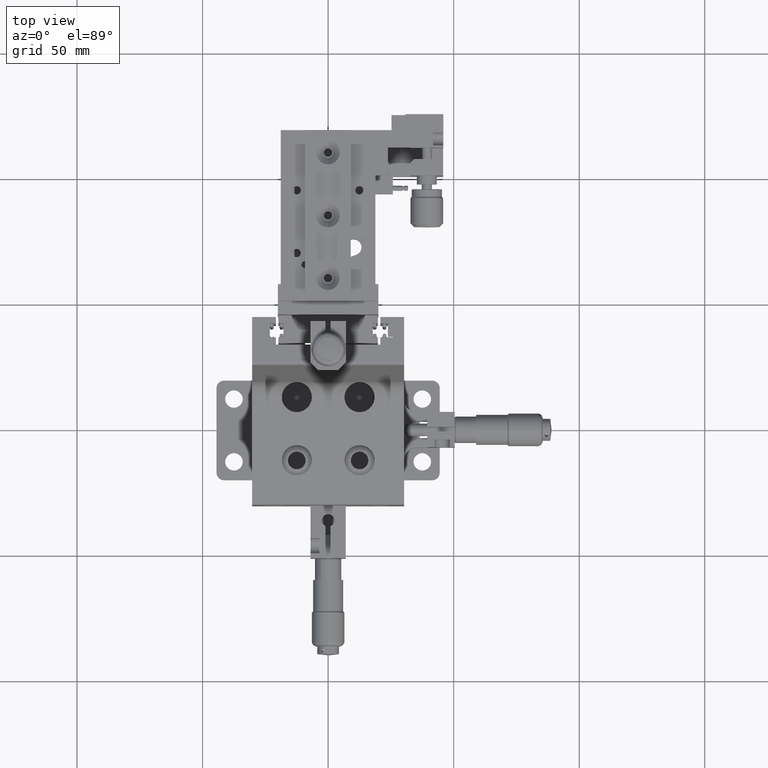
[diagram: clean part render]
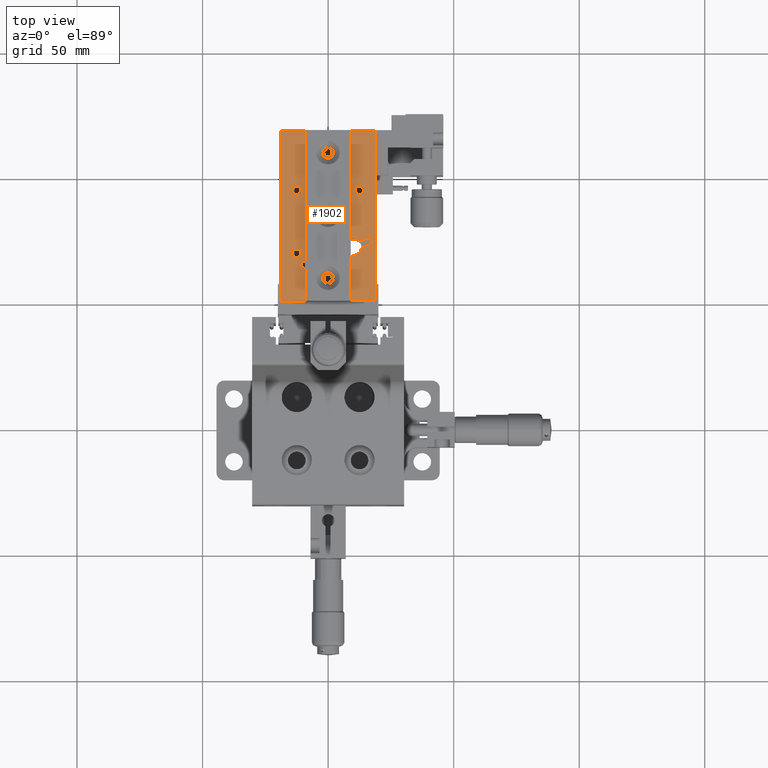
[diagram: same view with one face highlighted and labeled with its STEP entity id]
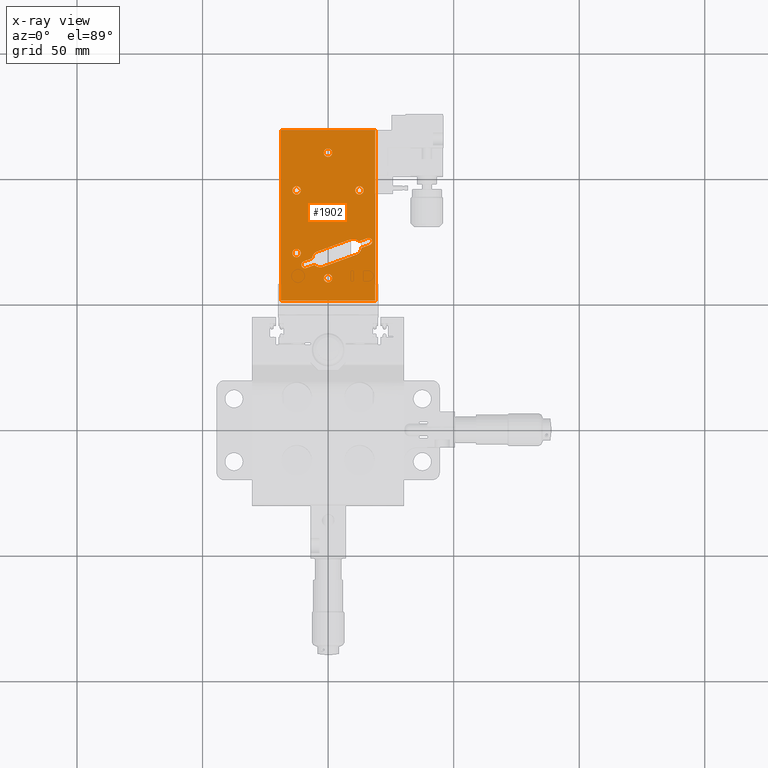
[diagram: x-ray of the same camera — body ghosted, the highlighted face saturated]
A machine part, top view. The second image highlights one B-rep face of the part: STEP entity #1902.
The next image is the same camera in x-ray: the body ghosted, the highlighted face saturated — about 0% of this face is hidden behind the body in this view.
In plain terms, the highlighted planar face has unit normal (0.0083, 0, -1).
Its self-contained STEP definition (entity closure, byte-faithful):
#1431 = VERTEX_POINT ( 'NONE', #15313 ) ;
#1466 = EDGE_CURVE ( 'NONE', #1431, #1480, #15370, .T. ) ;
#1480 = VERTEX_POINT ( 'NONE', #15418 ) ;
#1498 = VERTEX_POINT ( 'NONE', #15484 ) ;
#1499 = VERTEX_POINT ( 'NONE', #15473 ) ;
#1500 = VERTEX_POINT ( 'NONE', #15469 ) ;
#1501 = EDGE_CURVE ( 'NONE', #1510, #1500, #15478, .T. ) ;
#1505 = VERTEX_POINT ( 'NONE', #15464 ) ;
#1510 = VERTEX_POINT ( 'NONE', #15509 ) ;
#1512 = EDGE_CURVE ( 'NONE', #1520, #1529, #15513, .T. ) ;
#1514 = EDGE_CURVE ( 'NONE', #1498, #1499, #15510, .T. ) ;
#1520 = VERTEX_POINT ( 'NONE', #15549 ) ;
#1529 = VERTEX_POINT ( 'NONE', #15536 ) ;
#1537 = EDGE_CURVE ( 'NONE', #1559, #1616, #15535, .T. ) ;
#1542 = VERTEX_POINT ( 'NONE', #15543 ) ;
#1546 = VERTEX_POINT ( 'NONE', #15540 ) ;
#1548 = VERTEX_POINT ( 'NONE', #15522 ) ;
#1553 = EDGE_CURVE ( 'NONE', #1546, #1548, #15545, .T. ) ;
#1559 = VERTEX_POINT ( 'NONE', #15561 ) ;
#1566 = EDGE_CURVE ( 'NONE', #1505, #1568, #15556, .T. ) ;
#1568 = VERTEX_POINT ( 'NONE', #15602 ) ;
#1583 = EDGE_CURVE ( 'NONE', #1601, #1595, #15635, .T. ) ;
#1593 = EDGE_CURVE ( 'NONE', #1602, #1601, #15626, .T. ) ;
#1595 = VERTEX_POINT ( 'NONE', #15665 ) ;
#1601 = VERTEX_POINT ( 'NONE', #15654 ) ;
#1602 = VERTEX_POINT ( 'NONE', #15662 ) ;
#1607 = EDGE_CURVE ( 'NONE', #1542, #1611, #15704, .T. ) ;
#1611 = VERTEX_POINT ( 'NONE', #15647 ) ;
#1616 = VERTEX_POINT ( 'NONE', #15691 ) ;
#1626 = VERTEX_POINT ( 'NONE', #15705 ) ;
#1628 = EDGE_CURVE ( 'NONE', #1699, #1626, #15729, .T. ) ;
#1639 = EDGE_CURVE ( 'NONE', #1568, #1505, #15725, .T. ) ;
#1648 = EDGE_CURVE ( 'NONE', #1611, #1542, #15766, .T. ) ;
#1649 = EDGE_CURVE ( 'NONE', #1616, #1559, #15742, .T. ) ;
#1654 = EDGE_CURVE ( 'NONE', #1548, #1546, #15743, .T. ) ;
#1664 = EDGE_CURVE ( 'NONE', #1692, #1699, #15779, .T. ) ;
#1670 = EDGE_CURVE ( 'NONE', #1671, #1692, #15827, .T. ) ;
#1671 = VERTEX_POINT ( 'NONE', #15782 ) ;
#1692 = VERTEX_POINT ( 'NONE', #15848 ) ;
#1697 = EDGE_CURVE ( 'NONE', #1499, #1498, #15843, .T. ) ;
#1699 = VERTEX_POINT ( 'NONE', #15838 ) ;
#1703 = EDGE_CURVE ( 'NONE', #1782, #1510, #14857, .T. ) ;
#1709 = EDGE_CURVE ( 'NONE', #1723, #1520, #15598, .T. ) ;
#1723 = VERTEX_POINT ( 'NONE', #15870 ) ;
#1725 = EDGE_CURVE ( 'NONE', #1626, #1671, #15868, .T. ) ;
#1732 = VERTEX_POINT ( 'NONE', #15920 ) ;
#1747 = VERTEX_POINT ( 'NONE', #15897 ) ;
#1748 = VERTEX_POINT ( 'NONE', #15954 ) ;
#1753 = EDGE_CURVE ( 'NONE', #1732, #1747, #15942, .T. ) ;
#1769 = EDGE_CURVE ( 'NONE', #1500, #1529, #15932, .T. ) ;
#1773 = EDGE_CURVE ( 'NONE', #1732, #1782, #15974, .T. ) ;
#1782 = VERTEX_POINT ( 'NONE', #15970 ) ;
#1812 = EDGE_CURVE ( 'NONE', #1480, #1431, #16050, .T. ) ;
#1820 = EDGE_CURVE ( 'NONE', #1747, #1748, #16054, .T. ) ;
#1823 = ORIENTED_EDGE ( 'NONE', *, *, #1812, .T. ) ;
#1824 = EDGE_LOOP ( 'NONE', ( #1827, #1831 ) ) ;
#1825 = ORIENTED_EDGE ( 'NONE', *, *, #1466, .T. ) ;
#1826 = ORIENTED_EDGE ( 'NONE', *, *, #1649, .T. ) ;
#1827 = ORIENTED_EDGE ( 'NONE', *, *, #1648, .T. ) ;
#1828 = EDGE_LOOP ( 'NONE', ( #1826, #12308 ) ) ;
#1831 = ORIENTED_EDGE ( 'NONE', *, *, #1607, .T. ) ;
#1832 = ORIENTED_EDGE ( 'NONE', *, *, #1654, .T. ) ;
#1833 = EDGE_LOOP ( 'NONE', ( #1897, #1892 ) ) ;
#1834 = EDGE_LOOP ( 'NONE', ( #1836, #1898 ) ) ;
#1835 = EDGE_LOOP ( 'NONE', ( #1832, #12309 ) ) ;
#1836 = ORIENTED_EDGE ( 'NONE', *, *, #1639, .T. ) ;
#1867 = VERTEX_POINT ( 'NONE', #16122 ) ;
#1869 = ORIENTED_EDGE ( 'NONE', *, *, #1895, .F. ) ;
#1870 = ORIENTED_EDGE ( 'NONE', *, *, #1593, .F. ) ;
#1872 = EDGE_CURVE ( 'NONE', #1867, #1723, #16111, .T. ) ;
#1874 = ORIENTED_EDGE ( 'NONE', *, *, #1709, .T. ) ;
#1880 = ORIENTED_EDGE ( 'NONE', *, *, #1769, .F. ) ;
#1881 = ORIENTED_EDGE ( 'NONE', *, *, #1664, .F. ) ;
#1882 = EDGE_LOOP ( 'NONE', ( #1901, #1880, #1885, #1883, #1888, #1884, #1891, #1886, #1889, #1870, #1869, #1887, #1874 ) ) ;
#1883 = ORIENTED_EDGE ( 'NONE', *, *, #1703, .F. ) ;
#1884 = ORIENTED_EDGE ( 'NONE', *, *, #1753, .T. ) ;
#1885 = ORIENTED_EDGE ( 'NONE', *, *, #1501, .F. ) ;
#1886 = ORIENTED_EDGE ( 'NONE', *, *, #1890, .T. ) ;
#1887 = ORIENTED_EDGE ( 'NONE', *, *, #1872, .T. ) ;
#1888 = ORIENTED_EDGE ( 'NONE', *, *, #1773, .F. ) ;
#1889 = ORIENTED_EDGE ( 'NONE', *, *, #1583, .F. ) ;
#1890 = EDGE_CURVE ( 'NONE', #1748, #1595, #16099, .T. ) ;
#1891 = ORIENTED_EDGE ( 'NONE', *, *, #1820, .T. ) ;
#1892 = ORIENTED_EDGE ( 'NONE', *, *, #1514, .T. ) ;
#1894 = EDGE_LOOP ( 'NONE', ( #1899, #1896, #1881, #1900 ) ) ;
#1895 = EDGE_CURVE ( 'NONE', #1867, #1602, #15835, .T. ) ;
#1896 = ORIENTED_EDGE ( 'NONE', *, *, #1628, .F. ) ;
#1897 = ORIENTED_EDGE ( 'NONE', *, *, #1697, .T. ) ;
#1898 = ORIENTED_EDGE ( 'NONE', *, *, #1566, .T. ) ;
#1899 = ORIENTED_EDGE ( 'NONE', *, *, #1725, .F. ) ;
#1900 = ORIENTED_EDGE ( 'NONE', *, *, #1670, .F. ) ;
#1901 = ORIENTED_EDGE ( 'NONE', *, *, #1512, .T. ) ;
#1902 = ADVANCED_FACE ( 'NONE', ( #15840, #16083, #16092, #16093, #16100, #15592, #16119, #3337 ), #16156, .F. ) ;
#3337 = FACE_BOUND ( 'NONE', #1882, .T. ) ;
#12284 = EDGE_LOOP ( 'NONE', ( #1823, #1825 ) ) ;
#12308 = ORIENTED_EDGE ( 'NONE', *, *, #1537, .T. ) ;
#12309 = ORIENTED_EDGE ( 'NONE', *, *, #1553, .T. ) ;
#14833 = DIRECTION ( 'NONE',  ( 0.9999653012679379200, 0.0000000000000000000, 0.008330441772329904100 ) ) ;
#14835 = CARTESIAN_POINT ( 'NONE',  ( 16.13155753999655300, 73.16727193489542500, 119.3845785135130900 ) ) ;
#14837 = AXIS2_PLACEMENT_3D ( 'NONE', #14835, #14839, #14833 ) ;
#14839 = DIRECTION ( 'NONE',  ( -0.008330441772328889300, -1.729666205837794500E-016, 0.9999653012679379200 ) ) ;
#14857 = CIRCLE ( 'NONE', #14837, 1.399999999999994800 ) ;
#15075 = CARTESIAN_POINT ( 'NONE',  ( 8.912240548918038700, 73.99814202083278800, 119.3244363268252900 ) ) ;
#15084 = VECTOR ( 'NONE', #15336, 1000.000000000000100 ) ;
#15313 = CARTESIAN_POINT ( 'NONE',  ( 1.596211534964440600, 108.5499999999989000, 119.2634884583061300 ) ) ;
#15336 = DIRECTION ( 'NONE',  ( -0.9396600146434385100, -0.3420201433256699300, -0.007828054661344195600 ) ) ;
#15370 = CIRCLE ( 'NONE', #15421, 1.649999999999998400 ) ;
#15416 = DIRECTION ( 'NONE',  ( -0.9999653012679379200, 0.0000000000000000000, -0.008330441772331683900 ) ) ;
#15417 = DIRECTION ( 'NONE',  ( 0.008330441772328889300, 1.729666205837794500E-016, -0.9999653012679379200 ) ) ;
#15418 = CARTESIAN_POINT ( 'NONE',  ( -1.703673959219751600, 108.5499999999989000, 119.2359980004574400 ) ) ;
#15421 = AXIS2_PLACEMENT_3D ( 'NONE', #15426, #15417, #15416 ) ;
#15426 = CARTESIAN_POINT ( 'NONE',  ( -0.05373121212765554600, 108.5499999999989000, 119.2497432293817800 ) ) ;
#15432 = AXIS2_PLACEMENT_3D ( 'NONE', #15472, #15466, #15465 ) ;
#15464 = CARTESIAN_POINT ( 'NONE',  ( -10.90335473088478400, 68.54999999999888900, 119.1593579361520100 ) ) ;
#15465 = DIRECTION ( 'NONE',  ( 0.9999653012679379200, 0.0000000000000000000, 0.008330441772329904100 ) ) ;
#15466 = DIRECTION ( 'NONE',  ( -0.008330441772328889300, -1.729666205837794500E-016, 0.9999653012679379200 ) ) ;
#15469 = CARTESIAN_POINT ( 'NONE',  ( 15.65274595407207100, 74.48284160399570900, 119.3805896630685600 ) ) ;
#15472 = CARTESIAN_POINT ( 'NONE',  ( 16.13155753999655300, 73.16727193489542500, 119.3845785135130900 ) ) ;
#15473 = CARTESIAN_POINT ( 'NONE',  ( -1.703673959219751600, 58.54999999999888900, 119.2359980004574400 ) ) ;
#15478 = CIRCLE ( 'NONE', #15432, 1.399999999999994800 ) ;
#15484 = CARTESIAN_POINT ( 'NONE',  ( 1.596211534964440600, 58.54999999999888900, 119.2634884583061300 ) ) ;
#15492 = CARTESIAN_POINT ( 'NONE',  ( -0.05373121212765544900, 58.54999999999888900, 119.2497432293817800 ) ) ;
#15499 = DIRECTION ( 'NONE',  ( 0.008330441772328889300, 1.729666205837794500E-016, -0.9999653012679379200 ) ) ;
#15500 = DIRECTION ( 'NONE',  ( -0.9999653012679380300, 0.0000000000000000000, -0.008330441772328953500 ) ) ;
#15501 = DIRECTION ( 'NONE',  ( 0.008330441772328889300, 1.729666205837794500E-016, -0.9999653012679379200 ) ) ;
#15502 = AXIS2_PLACEMENT_3D ( 'NONE', #15505, #15501, #15500 ) ;
#15505 = CARTESIAN_POINT ( 'NONE',  ( 10.02376744481419700, 70.94414100327857400, 119.3336961582143500 ) ) ;
#15509 = CARTESIAN_POINT ( 'NONE',  ( 17.53150896177166400, 73.16727193489542500, 119.3962411319943400 ) ) ;
#15510 = CIRCLE ( 'NONE', #15514, 1.649999999999998400 ) ;
#15513 = CIRCLE ( 'NONE', #15502, 3.250000000000001800 ) ;
#15514 = AXIS2_PLACEMENT_3D ( 'NONE', #15492, #15499, #15553 ) ;
#15522 = CARTESIAN_POINT ( 'NONE',  ( -1.703673959219748100, 83.54999999999888900, 119.2359980004574400 ) ) ;
#15524 = DIRECTION ( 'NONE',  ( -0.9999653012679378100, 0.0000000000000000000, -0.008330441772331680400 ) ) ;
#15525 = DIRECTION ( 'NONE',  ( 0.008330441772328889300, 1.729666205837794500E-016, -0.9999653012679379200 ) ) ;
#15526 = CARTESIAN_POINT ( 'NONE',  ( 12.44583505372157000, 93.54999999999888900, 119.3538737515359000 ) ) ;
#15527 = AXIS2_PLACEMENT_3D ( 'NONE', #15526, #15525, #15524 ) ;
#15535 = CIRCLE ( 'NONE', #15527, 1.649999999999998800 ) ;
#15536 = CARTESIAN_POINT ( 'NONE',  ( 12.30098044390110700, 73.26285639411348400, 119.3526670067708200 ) ) ;
#15540 = CARTESIAN_POINT ( 'NONE',  ( 1.596211534964443900, 83.54999999999888900, 119.2634884583061300 ) ) ;
#15543 = CARTESIAN_POINT ( 'NONE',  ( -10.90335473088478400, 93.54999999999888900, 119.1593579361520200 ) ) ;
#15545 = CIRCLE ( 'NONE', #15576, 1.649999999999998400 ) ;
#15549 = CARTESIAN_POINT ( 'NONE',  ( 8.912240548918038700, 73.99814202083277300, 119.3244363268252900 ) ) ;
#15553 = DIRECTION ( 'NONE',  ( -0.9999653012679379200, 0.0000000000000000000, -0.008330441772331683900 ) ) ;
#15556 = CIRCLE ( 'NONE', #15608, 1.649999999999998800 ) ;
#15561 = CARTESIAN_POINT ( 'NONE',  ( 14.09577780081366600, 93.54999999999888900, 119.3676189804602500 ) ) ;
#15569 = DIRECTION ( 'NONE',  ( -0.9999653012679379200, 0.0000000000000000000, -0.008330441772331683900 ) ) ;
#15570 = DIRECTION ( 'NONE',  ( 0.008330441772328889300, 1.729666205837794500E-016, -0.9999653012679379200 ) ) ;
#15571 = CARTESIAN_POINT ( 'NONE',  ( -0.05373121212765202800, 83.54999999999888900, 119.2497432293817800 ) ) ;
#15576 = AXIS2_PLACEMENT_3D ( 'NONE', #15571, #15570, #15569 ) ;
#15592 = FACE_BOUND ( 'NONE', #1833, .T. ) ;
#15598 = LINE ( 'NONE', #15075, #15833 ) ;
#15602 = CARTESIAN_POINT ( 'NONE',  ( -14.20324022506897600, 68.54999999999888900, 119.1318674783033200 ) ) ;
#15605 = DIRECTION ( 'NONE',  ( -0.9999653012679378100, 0.0000000000000000000, -0.008330441772331680400 ) ) ;
#15606 = DIRECTION ( 'NONE',  ( 0.008330441772328889300, 1.729666205837794500E-016, -0.9999653012679379200 ) ) ;
#15607 = CARTESIAN_POINT ( 'NONE',  ( -12.55329747797688000, 68.54999999999888900, 119.1456127072276700 ) ) ;
#15608 = AXIS2_PLACEMENT_3D ( 'NONE', #15607, #15606, #15605 ) ;
#15619 = DIRECTION ( 'NONE',  ( -0.008330441772328889300, -1.729666205837794500E-016, 0.9999653012679379200 ) ) ;
#15620 = DIRECTION ( 'NONE',  ( 0.9396600146434386200, 0.3420201433256693800, 0.007828054661344195600 ) ) ;
#15621 = VECTOR ( 'NONE', #15620, 1000.000000000000100 ) ;
#15626 = CIRCLE ( 'NONE', #15672, 1.399999999999987900 ) ;
#15632 = CARTESIAN_POINT ( 'NONE',  ( -8.760451269451815300, 62.61715839600208300, 119.1772098881012900 ) ) ;
#15635 = LINE ( 'NONE', #15632, #15621 ) ;
#15647 = CARTESIAN_POINT ( 'NONE',  ( -14.20324022506897600, 93.54999999999888900, 119.1318674783033300 ) ) ;
#15648 = CARTESIAN_POINT ( 'NONE',  ( -12.55329747797688000, 93.54999999999888900, 119.1456127072276800 ) ) ;
#15654 = CARTESIAN_POINT ( 'NONE',  ( -8.760451269451815300, 62.61715839600208300, 119.1772098881012900 ) ) ;
#15662 = CARTESIAN_POINT ( 'NONE',  ( -9.718074441300807100, 65.24829773420259500, 119.1692321872122700 ) ) ;
#15664 = DIRECTION ( 'NONE',  ( 0.9999653012679379200, 0.0000000000000000000, 0.008330441772329944000 ) ) ;
#15665 = CARTESIAN_POINT ( 'NONE',  ( -5.408685759280860600, 63.83714360588430000, 119.2051325443990500 ) ) ;
#15672 = AXIS2_PLACEMENT_3D ( 'NONE', #15674, #15619, #15664 ) ;
#15674 = CARTESIAN_POINT ( 'NONE',  ( -9.239262855376313900, 63.93272806510233200, 119.1732210376567900 ) ) ;
#15691 = CARTESIAN_POINT ( 'NONE',  ( 10.79589230662947200, 93.54999999999888900, 119.3401285226115500 ) ) ;
#15694 = DIRECTION ( 'NONE',  ( -0.9999653012679378100, 0.0000000000000000000, -0.008330441772331680400 ) ) ;
#15695 = DIRECTION ( 'NONE',  ( 0.008330441772328889300, 1.729666205837794500E-016, -0.9999653012679379200 ) ) ;
#15696 = AXIS2_PLACEMENT_3D ( 'NONE', #15648, #15695, #15694 ) ;
#15704 = CIRCLE ( 'NONE', #15696, 1.649999999999998800 ) ;
#15705 = CARTESIAN_POINT ( 'NONE',  ( 18.74561645170958400, 117.5499999999988900, 119.4063555347015600 ) ) ;
#15709 = DIRECTION ( 'NONE',  ( -0.9999653012679378100, 0.0000000000000000000, -0.008330441772331680400 ) ) ;
#15710 = DIRECTION ( 'NONE',  ( 0.008330441772328889300, 1.729666205837794500E-016, -0.9999653012679379200 ) ) ;
#15711 = CARTESIAN_POINT ( 'NONE',  ( -12.55329747797688000, 68.54999999999888900, 119.1456127072276700 ) ) ;
#15712 = AXIS2_PLACEMENT_3D ( 'NONE', #15711, #15710, #15709 ) ;
#15717 = AXIS2_PLACEMENT_3D ( 'NONE', #15750, #15800, #15799 ) ;
#15725 = CIRCLE ( 'NONE', #15712, 1.649999999999998800 ) ;
#15726 = DIRECTION ( 'NONE',  ( 0.9999653012679379200, 5.293402146018202900E-019, 0.008330441772328889300 ) ) ;
#15727 = VECTOR ( 'NONE', #15726, 1000.000000000000000 ) ;
#15728 = CARTESIAN_POINT ( 'NONE',  ( 18.74561645170958400, 117.5499999999988900, 119.4063555347015600 ) ) ;
#15729 = LINE ( 'NONE', #15728, #15727 ) ;
#15742 = CIRCLE ( 'NONE', #15717, 1.649999999999998800 ) ;
#15743 = CIRCLE ( 'NONE', #15797, 1.649999999999998400 ) ;
#15746 = DIRECTION ( 'NONE',  ( -0.9999653012679378100, 0.0000000000000000000, -0.008330441772331680400 ) ) ;
#15747 = AXIS2_PLACEMENT_3D ( 'NONE', #15751, #15761, #15746 ) ;
#15749 = DIRECTION ( 'NONE',  ( 0.008330441772328889300, 1.729666205837794500E-016, -0.9999653012679379200 ) ) ;
#15750 = CARTESIAN_POINT ( 'NONE',  ( 12.44583505372157000, 93.54999999999888900, 119.3538737515359000 ) ) ;
#15751 = CARTESIAN_POINT ( 'NONE',  ( -12.55329747797688000, 93.54999999999888900, 119.1456127072276800 ) ) ;
#15752 = CARTESIAN_POINT ( 'NONE',  ( -0.05373121212765202800, 83.54999999999888900, 119.2497432293817800 ) ) ;
#15761 = DIRECTION ( 'NONE',  ( 0.008330441772328889300, 1.729666205837794500E-016, -0.9999653012679379200 ) ) ;
#15766 = CIRCLE ( 'NONE', #15747, 1.649999999999998800 ) ;
#15770 = VECTOR ( 'NONE', #15781, 1000.000000000000000 ) ;
#15771 = CARTESIAN_POINT ( 'NONE',  ( -18.85307887596488300, 117.5499999999988900, 119.0931309240620000 ) ) ;
#15779 = LINE ( 'NONE', #15771, #15770 ) ;
#15781 = DIRECTION ( 'NONE',  ( 1.000688064545446800E-016, 1.000000000000000000, 1.738062688063274900E-016 ) ) ;
#15782 = CARTESIAN_POINT ( 'NONE',  ( 18.74561645170957600, 49.54999999999888900, 119.4063555347015600 ) ) ;
#15796 = DIRECTION ( 'NONE',  ( -0.9999653012679379200, 0.0000000000000000000, -0.008330441772331683900 ) ) ;
#15797 = AXIS2_PLACEMENT_3D ( 'NONE', #15752, #15749, #15796 ) ;
#15799 = DIRECTION ( 'NONE',  ( -0.9999653012679378100, 0.0000000000000000000, -0.008330441772331680400 ) ) ;
#15800 = DIRECTION ( 'NONE',  ( 0.008330441772328889300, 1.729666205837794500E-016, -0.9999653012679379200 ) ) ;
#15822 = VECTOR ( 'NONE', #15824, 1000.000000000000000 ) ;
#15824 = DIRECTION ( 'NONE',  ( -0.9999653012679379200, -5.293402146018202900E-019, -0.008330441772328889300 ) ) ;
#15825 = CARTESIAN_POINT ( 'NONE',  ( 18.74561645170957600, 49.54999999999888900, 119.4063555347015600 ) ) ;
#15827 = LINE ( 'NONE', #15825, #15822 ) ;
#15833 = VECTOR ( 'NONE', #15847, 1000.000000000000200 ) ;
#15834 = CARTESIAN_POINT ( 'NONE',  ( -9.718074441300807100, 65.24829773420259500, 119.1692321872122700 ) ) ;
#15835 = LINE ( 'NONE', #15834, #15084 ) ;
#15836 = DIRECTION ( 'NONE',  ( -0.9999653012679379200, 0.0000000000000000000, -0.008330441772331683900 ) ) ;
#15837 = AXIS2_PLACEMENT_3D ( 'NONE', #15841, #15858, #15836 ) ;
#15838 = CARTESIAN_POINT ( 'NONE',  ( -18.85307887596488300, 117.5499999999988900, 119.0931309240620000 ) ) ;
#15840 = FACE_BOUND ( 'NONE', #12284, .T. ) ;
#15841 = CARTESIAN_POINT ( 'NONE',  ( -0.05373121212765544900, 58.54999999999888900, 119.2497432293817800 ) ) ;
#15843 = CIRCLE ( 'NONE', #15837, 1.649999999999998400 ) ;
#15847 = DIRECTION ( 'NONE',  ( 0.9396600146434387300, 0.3420201433256696000, 0.007828054661344197400 ) ) ;
#15848 = CARTESIAN_POINT ( 'NONE',  ( -18.85307887596489000, 49.54999999999888900, 119.0931309240620000 ) ) ;
#15858 = DIRECTION ( 'NONE',  ( 0.008330441772328889300, 1.729666205837794500E-016, -0.9999653012679379200 ) ) ;
#15867 = CARTESIAN_POINT ( 'NONE',  ( 18.74561645170958400, 117.5499999999988900, 119.4063555347015600 ) ) ;
#15868 = LINE ( 'NONE', #15867, #15923 ) ;
#15870 = CARTESIAN_POINT ( 'NONE',  ( -4.242999656090102400, 69.20986001427340300, 119.2148435615664700 ) ) ;
#15897 = CARTESIAN_POINT ( 'NONE',  ( 11.13529434071035600, 67.89013998572437500, 119.3429559896033800 ) ) ;
#15920 = CARTESIAN_POINT ( 'NONE',  ( 13.25860361575010200, 70.63171705591295800, 119.3606447076598300 ) ) ;
#15922 = DIRECTION ( 'NONE',  ( -1.000688064545446800E-016, -1.000000000000000000, -1.738062688063274900E-016 ) ) ;
#15923 = VECTOR ( 'NONE', #15922, 1000.000000000000000 ) ;
#15932 = LINE ( 'NONE', #15989, #15985 ) ;
#15939 = DIRECTION ( 'NONE',  ( -0.9999653012679380300, 0.0000000000000000000, -0.008330441772328953500 ) ) ;
#15940 = DIRECTION ( 'NONE',  ( 0.008330441772328889300, 1.729666205837794500E-016, -0.9999653012679379200 ) ) ;
#15941 = AXIS2_PLACEMENT_3D ( 'NONE', #15948, #15940, #15939 ) ;
#15942 = CIRCLE ( 'NONE', #15941, 3.250000000000001800 ) ;
#15948 = CARTESIAN_POINT ( 'NONE',  ( 10.02376744481419700, 70.94414100327857400, 119.3336961582143500 ) ) ;
#15954 = CARTESIAN_POINT ( 'NONE',  ( -2.019945864297787400, 63.10185797916499700, 119.2333632243445700 ) ) ;
#15970 = CARTESIAN_POINT ( 'NONE',  ( 16.61036912592107500, 71.85170226579518300, 119.3885673639575900 ) ) ;
#15971 = DIRECTION ( 'NONE',  ( 0.9396600146434386200, 0.3420201433256693800, 0.007828054661344195600 ) ) ;
#15972 = VECTOR ( 'NONE', #15971, 1000.000000000000100 ) ;
#15973 = CARTESIAN_POINT ( 'NONE',  ( -8.760451269451815300, 62.61715839600208300, 119.1772098881012900 ) ) ;
#15974 = LINE ( 'NONE', #15973, #15972 ) ;
#15985 = VECTOR ( 'NONE', #15988, 1000.000000000000100 ) ;
#15988 = DIRECTION ( 'NONE',  ( -0.9396600146434385100, -0.3420201433256699300, -0.007828054661344195600 ) ) ;
#15989 = CARTESIAN_POINT ( 'NONE',  ( -9.718074441300807100, 65.24829773420259500, 119.1692321872122700 ) ) ;
#16035 = VECTOR ( 'NONE', #16051, 1000.000000000000200 ) ;
#16041 = DIRECTION ( 'NONE',  ( -0.9999653012679379200, 0.0000000000000000000, -0.008330441772331683900 ) ) ;
#16042 = DIRECTION ( 'NONE',  ( 0.008330441772328889300, 1.729666205837794500E-016, -0.9999653012679379200 ) ) ;
#16043 = CARTESIAN_POINT ( 'NONE',  ( -0.05373121212765554600, 108.5499999999989000, 119.2497432293817800 ) ) ;
#16049 = AXIS2_PLACEMENT_3D ( 'NONE', #16043, #16042, #16041 ) ;
#16050 = CIRCLE ( 'NONE', #16049, 1.649999999999998400 ) ;
#16051 = DIRECTION ( 'NONE',  ( -0.9396600146434386200, -0.3420201433256696000, -0.007828054661344195600 ) ) ;
#16052 = CARTESIAN_POINT ( 'NONE',  ( 11.13529434071035600, 67.89013998572437500, 119.3429559896033800 ) ) ;
#16054 = LINE ( 'NONE', #16052, #16035 ) ;
#16083 = FACE_BOUND ( 'NONE', #1824, .T. ) ;
#16092 = FACE_BOUND ( 'NONE', #1828, .T. ) ;
#16093 = FACE_BOUND ( 'NONE', #1835, .T. ) ;
#16095 = DIRECTION ( 'NONE',  ( -0.9999653012679380300, 0.0000000000000000000, -0.008330441772328953500 ) ) ;
#16096 = DIRECTION ( 'NONE',  ( 0.008330441772328889300, 1.729666205837794500E-016, -0.9999653012679379200 ) ) ;
#16097 = CARTESIAN_POINT ( 'NONE',  ( -3.131472760193942900, 66.15585899671920300, 119.2241033929555300 ) ) ;
#16098 = AXIS2_PLACEMENT_3D ( 'NONE', #16097, #16096, #16095 ) ;
#16099 = CIRCLE ( 'NONE', #16098, 3.250000000000001800 ) ;
#16100 = FACE_BOUND ( 'NONE', #1834, .T. ) ;
#16108 = DIRECTION ( 'NONE',  ( -0.9999653012679380300, 0.0000000000000000000, -0.008330441772328953500 ) ) ;
#16109 = DIRECTION ( 'NONE',  ( 0.008330441772328889300, 1.729666205837794500E-016, -0.9999653012679379200 ) ) ;
#16110 = AXIS2_PLACEMENT_3D ( 'NONE', #16114, #16109, #16108 ) ;
#16111 = CIRCLE ( 'NONE', #16110, 3.250000000000001800 ) ;
#16114 = CARTESIAN_POINT ( 'NONE',  ( -3.131472760193942900, 66.15585899671920300, 119.2241033929555300 ) ) ;
#16119 = FACE_OUTER_BOUND ( 'NONE', #1894, .T. ) ;
#16122 = CARTESIAN_POINT ( 'NONE',  ( -6.366308931129849700, 66.46828294408483400, 119.1971548435100200 ) ) ;
#16148 = DIRECTION ( 'NONE',  ( -0.9999653012679379200, -5.293402146018202900E-019, -0.008330441772328889300 ) ) ;
#16149 = DIRECTION ( 'NONE',  ( 0.008330441772328889300, 1.729666205837794700E-016, -0.9999653012679379200 ) ) ;
#16150 = CARTESIAN_POINT ( 'NONE',  ( 18.74561645170957600, 49.54999999999888900, 119.4063555347015600 ) ) ;
#16151 = AXIS2_PLACEMENT_3D ( 'NONE', #16150, #16149, #16148 ) ;
#16156 = PLANE ( 'NONE',  #16151 ) ;